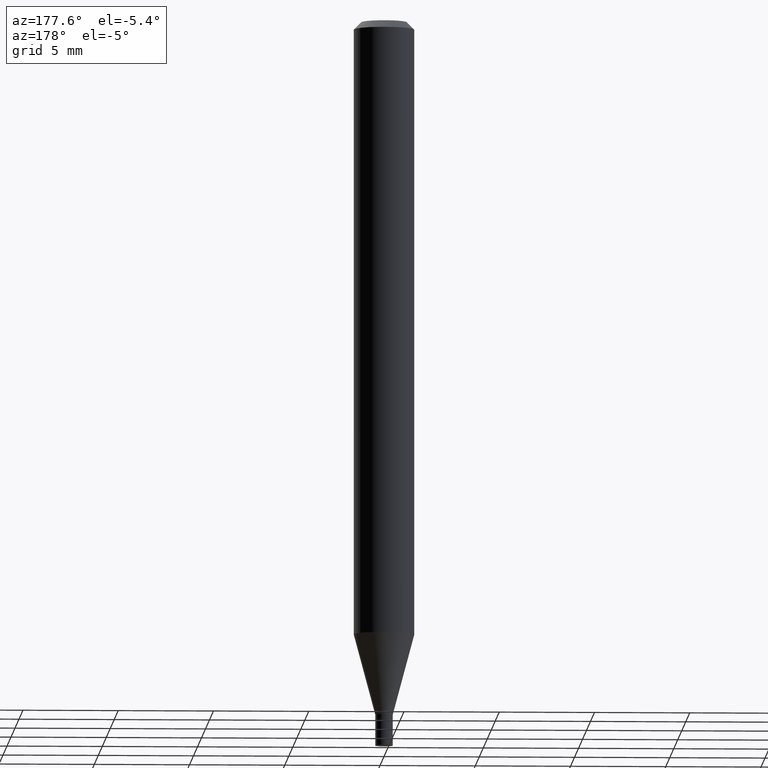
[diagram: clean part render]
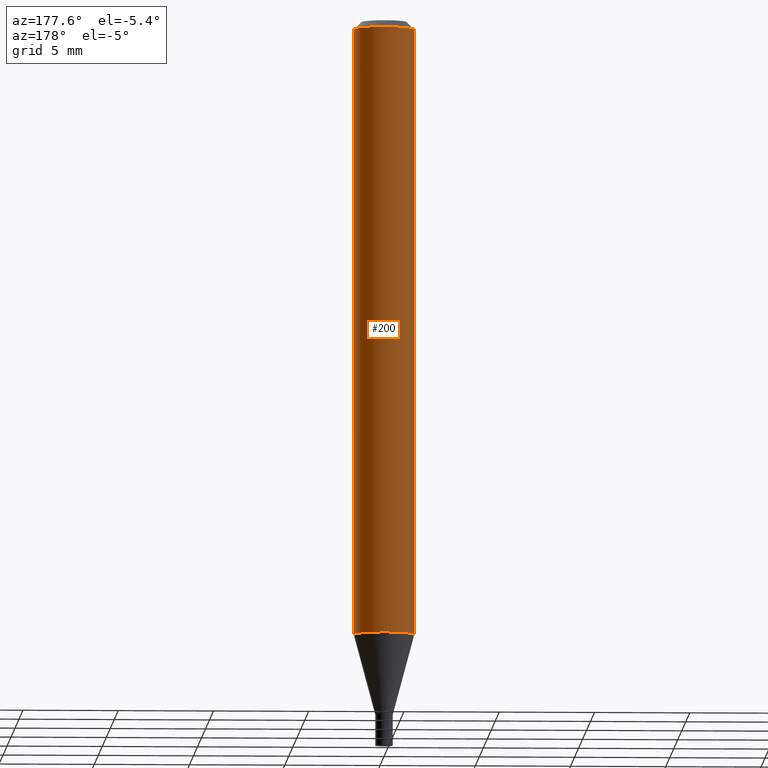
[diagram: same view with one face highlighted and labeled with its STEP entity id]
A machine part, auxiliary view. The second image highlights one B-rep face of the part: STEP entity #200.
In plain terms, the highlighted cylindrical surface (edge-blend (fillet) strip) has radius 1.5875 mm, axis along (-0, 0, 1).
Its self-contained STEP definition (entity closure, byte-faithful):
#1 = VERTEX_POINT ( 'NONE', #350 ) ;
#9 = DIRECTION ( 'NONE',  ( -2.445468806185136597E-29, 3.491481338843145583E-15, 1.000000000000000000 ) ) ;
#29 = CARTESIAN_POINT ( 'NONE',  ( -0.06250000000000000000, -3.989825826842961648E-15, -1.269923739063185453 ) ) ;
#37 = DIRECTION ( 'NONE',  ( -2.445468806185136877E-29, 3.491481338843145188E-15, 1.000000000000000000 ) ) ;
#39 = VECTOR ( 'NONE', #190, 39.37007874015748143 ) ;
#40 = CARTESIAN_POINT ( 'NONE',  ( -0.06250000000000000000, 4.440892098500626162E-16, -3.074334431409316114E-30 ) ) ;
#69 = CARTESIAN_POINT ( 'NONE',  ( 0.06250000000000000000, -4.870350204048415934E-15, -1.269923739063185453 ) ) ;
#114 = DIRECTION ( 'NONE',  ( 1.000000000000000000, -6.982962677686266711E-15, 0.000000000000000000 ) ) ;
#117 = CARTESIAN_POINT ( 'NONE',  ( 0.06250000000000000000, -4.888073874380388472E-16, -0.01499999999999999944 ) ) ;
#135 = EDGE_CURVE ( 'NONE', #438, #171, #249, .T. ) ;
#136 = CIRCLE ( 'NONE', #147, 0.06250000000000000000 ) ;
#138 = CIRCLE ( 'NONE', #246, 0.06250000000000000000 ) ;
#144 = ORIENTED_EDGE ( 'NONE', *, *, #135, .F. ) ;
#147 = AXIS2_PLACEMENT_3D ( 'NONE', #352, #9, #256 ) ;
#150 = CARTESIAN_POINT ( 'NONE',  ( 3.668203209277705088E-31, -5.237222008264718399E-17, -0.01499999999999999944 ) ) ;
#164 = VERTEX_POINT ( 'NONE', #29 ) ;
#171 = VERTEX_POINT ( 'NONE', #117 ) ;
#190 = DIRECTION ( 'NONE',  ( -2.445468806185136877E-29, 3.491481338843145188E-15, 1.000000000000000000 ) ) ;
#200 = ADVANCED_FACE ( 'NONE', ( #390 ), #220, .T. ) ;
#220 = CYLINDRICAL_SURFACE ( 'NONE', #318, 0.06250000000000000000 ) ;
#246 = AXIS2_PLACEMENT_3D ( 'NONE', #150, #450, #114 ) ;
#249 = LINE ( 'NONE', #345, #385 ) ;
#256 = DIRECTION ( 'NONE',  ( 1.000000000000000000, -6.982962677686262766E-15, 0.000000000000000000 ) ) ;
#279 = EDGE_CURVE ( 'NONE', #438, #164, #136, .T. ) ;
#293 = ORIENTED_EDGE ( 'NONE', *, *, #401, .T. ) ;
#304 = ORIENTED_EDGE ( 'NONE', *, *, #420, .F. ) ;
#317 = CARTESIAN_POINT ( 'NONE',  ( 0.000000000000000000, 0.000000000000000000, 0.000000000000000000 ) ) ;
#318 = AXIS2_PLACEMENT_3D ( 'NONE', #317, #446, #430 ) ;
#345 = CARTESIAN_POINT ( 'NONE',  ( 0.06250000000000000000, -4.364351673553916694E-16, 3.047610484872459871E-30 ) ) ;
#347 = LINE ( 'NONE', #40, #39 ) ;
#350 = CARTESIAN_POINT ( 'NONE',  ( -0.06250000000000000000, -1.799054418537772859E-15, -0.01499999999999999944 ) ) ;
#352 = CARTESIAN_POINT ( 'NONE',  ( 3.105558890113012854E-29, -4.433915036693023476E-15, -1.269923739063185453 ) ) ;
#368 = ORIENTED_EDGE ( 'NONE', *, *, #279, .T. ) ;
#385 = VECTOR ( 'NONE', #37, 39.37007874015748143 ) ;
#390 = FACE_OUTER_BOUND ( 'NONE', #447, .T. ) ;
#401 = EDGE_CURVE ( 'NONE', #164, #1, #347, .T. ) ;
#420 = EDGE_CURVE ( 'NONE', #171, #1, #138, .T. ) ;
#430 = DIRECTION ( 'NONE',  ( 1.000000000000000000, -6.982962677686266711E-15, 4.876176775795935793E-29 ) ) ;
#438 = VERTEX_POINT ( 'NONE', #69 ) ;
#446 = DIRECTION ( 'NONE',  ( -2.445468806185136597E-29, 3.491481338843145583E-15, 1.000000000000000000 ) ) ;
#447 = EDGE_LOOP ( 'NONE', ( #368, #293, #304, #144 ) ) ;
#450 = DIRECTION ( 'NONE',  ( -2.445468806185136597E-29, 3.491481338843145583E-15, 1.000000000000000000 ) ) ;